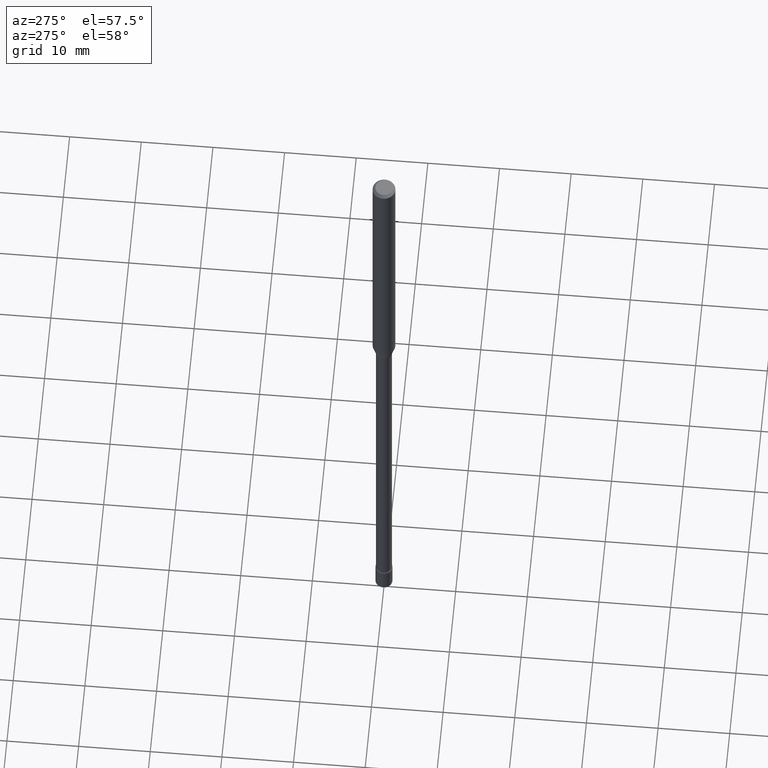
[diagram: clean part render]
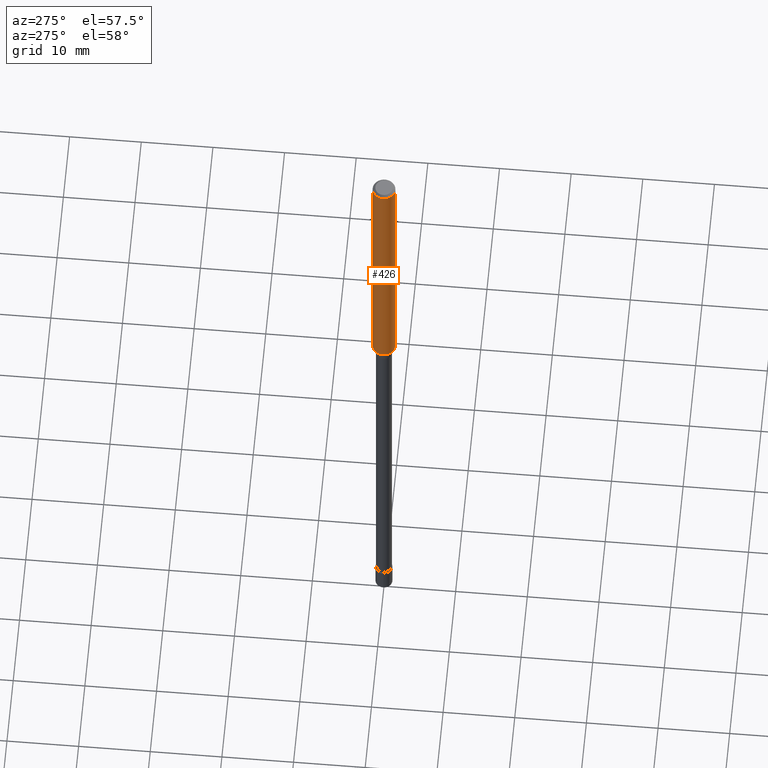
[diagram: same view with one face highlighted and labeled with its STEP entity id]
A machine part, auxiliary view. The second image highlights one B-rep face of the part: STEP entity #426.
In plain terms, the highlighted cylindrical surface (edge-blend (fillet) strip) has radius 1.5875 mm, axis along (-0, 0, 1).
Its self-contained STEP definition (entity closure, byte-faithful):
#20 = VERTEX_POINT ( 'NONE', #69 ) ;
#28 = ORIENTED_EDGE ( 'NONE', *, *, #395, .T. ) ;
#43 = CIRCLE ( 'NONE', #373, 0.06250000000000000000 ) ;
#69 = CARTESIAN_POINT ( 'NONE',  ( -4.364351673553521278E-16, -0.06250000000000556499, -1.604837444817704739 ) ) ;
#86 = EDGE_CURVE ( 'NONE', #422, #514, #228, .T. ) ;
#93 = AXIS2_PLACEMENT_3D ( 'NONE', #402, #195, #355 ) ;
#97 = CIRCLE ( 'NONE', #93, 0.06250000000000000000 ) ;
#114 = DIRECTION ( 'NONE',  ( -6.982962677686265922E-15, -1.000000000000000000, 4.370956789862821150E-15 ) ) ;
#129 = DIRECTION ( 'NONE',  ( -2.445453415046726170E-29, 3.491503379829358558E-15, 1.000000000000000000 ) ) ;
#139 = CARTESIAN_POINT ( 'NONE',  ( 4.440892098501019606E-16, 0.06249999999999443501, -1.604837444817705405 ) ) ;
#141 = LINE ( 'NONE', #492, #430 ) ;
#146 = EDGE_CURVE ( 'NONE', #514, #504, #97, .T. ) ;
#173 = CARTESIAN_POINT ( 'NONE',  ( -4.364351673553912750E-16, -0.06250000000000005551, -0.01499999999999981209 ) ) ;
#177 = AXIS2_PLACEMENT_3D ( 'NONE', #249, #413, #490 ) ;
#195 = DIRECTION ( 'NONE',  ( -2.445453415046726170E-29, 3.491503379829358558E-15, 1.000000000000000000 ) ) ;
#212 = CYLINDRICAL_SURFACE ( 'NONE', #177, 0.06250000000000000000 ) ;
#221 = ORIENTED_EDGE ( 'NONE', *, *, #86, .F. ) ;
#222 = ORIENTED_EDGE ( 'NONE', *, *, #283, .T. ) ;
#228 = LINE ( 'NONE', #389, #482 ) ;
#249 = CARTESIAN_POINT ( 'NONE',  ( 0.000000000000000000, 0.000000000000000000, 0.000000000000000000 ) ) ;
#256 = FACE_OUTER_BOUND ( 'NONE', #511, .T. ) ;
#283 = EDGE_CURVE ( 'NONE', #422, #20, #43, .T. ) ;
#304 = ORIENTED_EDGE ( 'NONE', *, *, #146, .F. ) ;
#322 = CARTESIAN_POINT ( 'NONE',  ( 3.924555210024319080E-29, -5.603295362657728599E-15, -1.604837444817704961 ) ) ;
#355 = DIRECTION ( 'NONE',  ( -6.982962677686265922E-15, -1.000000000000000000, 3.483106191921935554E-15 ) ) ;
#373 = AXIS2_PLACEMENT_3D ( 'NONE', #322, #129, #114 ) ;
#389 = CARTESIAN_POINT ( 'NONE',  ( 4.440892098500625669E-16, 0.06250000000000000000, -2.182189612393349099E-16 ) ) ;
#395 = EDGE_CURVE ( 'NONE', #20, #504, #141, .T. ) ;
#402 = CARTESIAN_POINT ( 'NONE',  ( 3.668180122570096699E-31, -5.237255069744048462E-17, -0.01500000000000003067 ) ) ;
#411 = DIRECTION ( 'NONE',  ( -2.445453415046725890E-29, 3.491503379829358163E-15, 1.000000000000000000 ) ) ;
#413 = DIRECTION ( 'NONE',  ( -2.445453415046726170E-29, 3.491503379829358558E-15, 1.000000000000000000 ) ) ;
#422 = VERTEX_POINT ( 'NONE', #139 ) ;
#426 = ADVANCED_FACE ( 'NONE', ( #256 ), #212, .T. ) ;
#430 = VECTOR ( 'NONE', #411, 39.37007874015748143 ) ;
#482 = VECTOR ( 'NONE', #516, 39.37007874015748143 ) ;
#486 = CARTESIAN_POINT ( 'NONE',  ( 4.440892098501020592E-16, 0.06249999999999995143, -0.01500000000000024751 ) ) ;
#490 = DIRECTION ( 'NONE',  ( -6.982962677686265922E-15, -1.000000000000000000, 3.491503379829358558E-15 ) ) ;
#492 = CARTESIAN_POINT ( 'NONE',  ( -4.364351673553916201E-16, -0.06250000000000000000, 2.182189612393349099E-16 ) ) ;
#504 = VERTEX_POINT ( 'NONE', #173 ) ;
#511 = EDGE_LOOP ( 'NONE', ( #221, #222, #28, #304 ) ) ;
#514 = VERTEX_POINT ( 'NONE', #486 ) ;
#516 = DIRECTION ( 'NONE',  ( -2.445453415046725890E-29, 3.491503379829358163E-15, 1.000000000000000000 ) ) ;